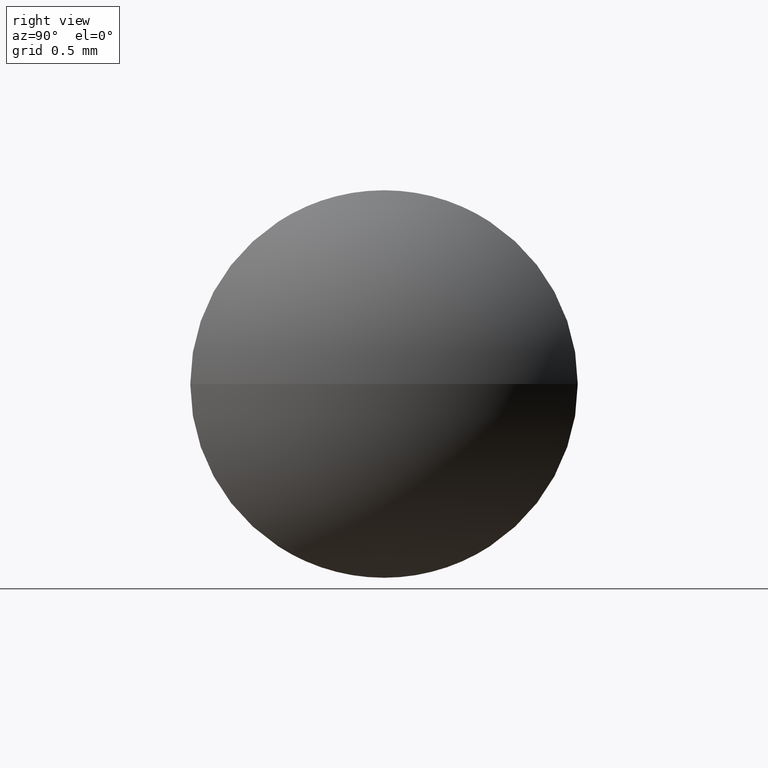
[diagram: clean part render]
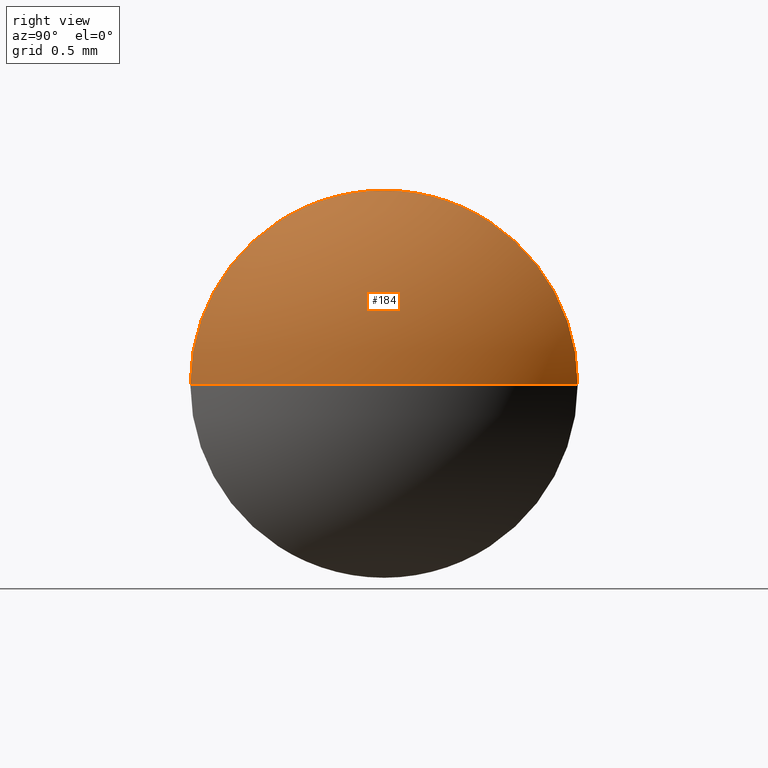
[diagram: same view with one face highlighted and labeled with its STEP entity id]
A machine part, right view. The second image highlights one B-rep face of the part: STEP entity #184.
In plain terms, the highlighted spherical surface has radius 1.25 mm.
Its self-contained STEP definition (entity closure, byte-faithful):
#3 = DIRECTION ( 'NONE',  ( -1.000000000000000000, 4.187626049147712300E-017, -0.0000000000000000000 ) ) ;
#13 = AXIS2_PLACEMENT_3D ( 'NONE', #236, #3, #261 ) ;
#26 = EDGE_CURVE ( 'NONE', #296, #290, #121, .T. ) ;
#36 = CARTESIAN_POINT ( 'NONE',  ( 0.7500000000000002200, -1.000000000000000200, 0.0000000000000000000 ) ) ;
#38 = CARTESIAN_POINT ( 'NONE',  ( 0.0000000000000000000, 0.0000000000000000000, 0.0000000000000000000 ) ) ;
#84 = DIRECTION ( 'NONE',  ( 0.0000000000000000000, 0.0000000000000000000, 1.000000000000000000 ) ) ;
#102 = CARTESIAN_POINT ( 'NONE',  ( 0.0000000000000000000, 0.0000000000000000000, 0.0000000000000000000 ) ) ;
#108 = EDGE_CURVE ( 'NONE', #296, #149, #163, .T. ) ;
#109 = CARTESIAN_POINT ( 'NONE',  ( 1.250000000000000000, -1.288857505610559800E-016, 0.0000000000000000000 ) ) ;
#121 = CIRCLE ( 'NONE', #238, 1.250000000000000000 ) ;
#130 = DIRECTION ( 'NONE',  ( 0.0000000000000000000, -0.0000000000000000000, -1.000000000000000000 ) ) ;
#131 = ORIENTED_EDGE ( 'NONE', *, *, #142, .F. ) ;
#134 = CARTESIAN_POINT ( 'NONE',  ( 0.7500000000000002200, 1.000000000000000200, 1.224646799147353500E-016 ) ) ;
#142 = EDGE_CURVE ( 'NONE', #290, #149, #242, .T. ) ;
#149 = VERTEX_POINT ( 'NONE', #134 ) ;
#151 = DIRECTION ( 'NONE',  ( -5.128362837114822700E-033, -1.224646799147353200E-016, 1.000000000000000000 ) ) ;
#163 = CIRCLE ( 'NONE', #305, 1.250000000000000000 ) ;
#177 = DIRECTION ( 'NONE',  ( 0.0000000000000000000, -1.000000000000000000, -1.224646799147353200E-016 ) ) ;
#182 = ORIENTED_EDGE ( 'NONE', *, *, #108, .T. ) ;
#184 = ADVANCED_FACE ( 'NONE', ( #270 ), #200, .T. ) ;
#200 = SPHERICAL_SURFACE ( 'NONE', #223, 1.250000000000000000 ) ;
#212 = EDGE_LOOP ( 'NONE', ( #293, #182, #131 ) ) ;
#223 = AXIS2_PLACEMENT_3D ( 'NONE', #38, #84, #229 ) ;
#229 = DIRECTION ( 'NONE',  ( -4.187626049147712300E-017, -1.000000000000000000, 0.0000000000000000000 ) ) ;
#236 = CARTESIAN_POINT ( 'NONE',  ( 0.7500000000000002200, 5.323562977970660000E-017, 0.0000000000000000000 ) ) ;
#238 = AXIS2_PLACEMENT_3D ( 'NONE', #102, #130, #274 ) ;
#242 = CIRCLE ( 'NONE', #13, 1.000000000000000200 ) ;
#261 = DIRECTION ( 'NONE',  ( 0.0000000000000000000, -1.000000000000000000, 0.0000000000000000000 ) ) ;
#270 = FACE_OUTER_BOUND ( 'NONE', #212, .T. ) ;
#274 = DIRECTION ( 'NONE',  ( -1.000000000000000000, 0.0000000000000000000, 0.0000000000000000000 ) ) ;
#290 = VERTEX_POINT ( 'NONE', #36 ) ;
#293 = ORIENTED_EDGE ( 'NONE', *, *, #26, .F. ) ;
#296 = VERTEX_POINT ( 'NONE', #109 ) ;
#297 = CARTESIAN_POINT ( 'NONE',  ( 0.0000000000000000000, 0.0000000000000000000, 0.0000000000000000000 ) ) ;
#305 = AXIS2_PLACEMENT_3D ( 'NONE', #297, #151, #177 ) ;